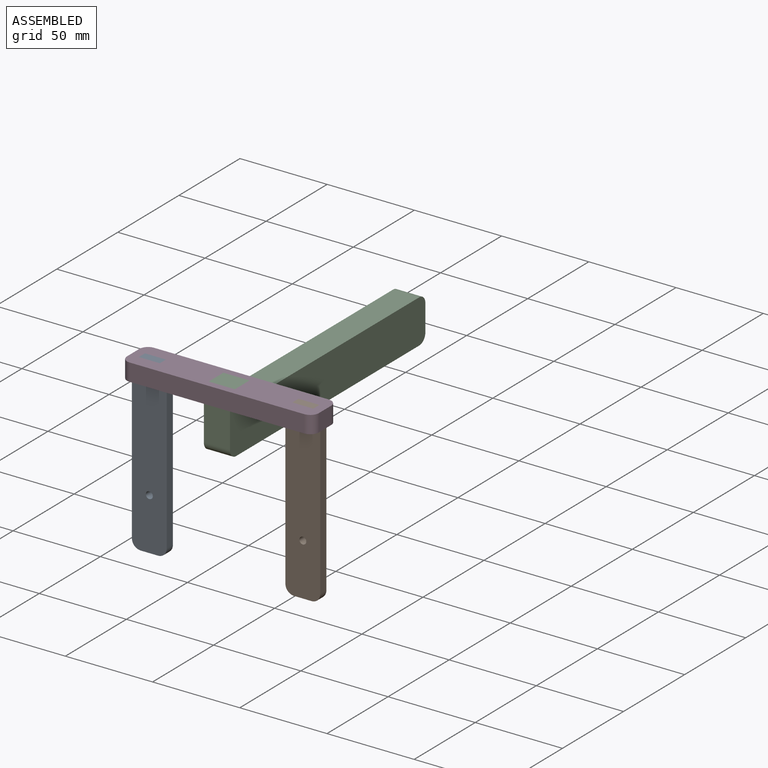
[diagram: assembled view]
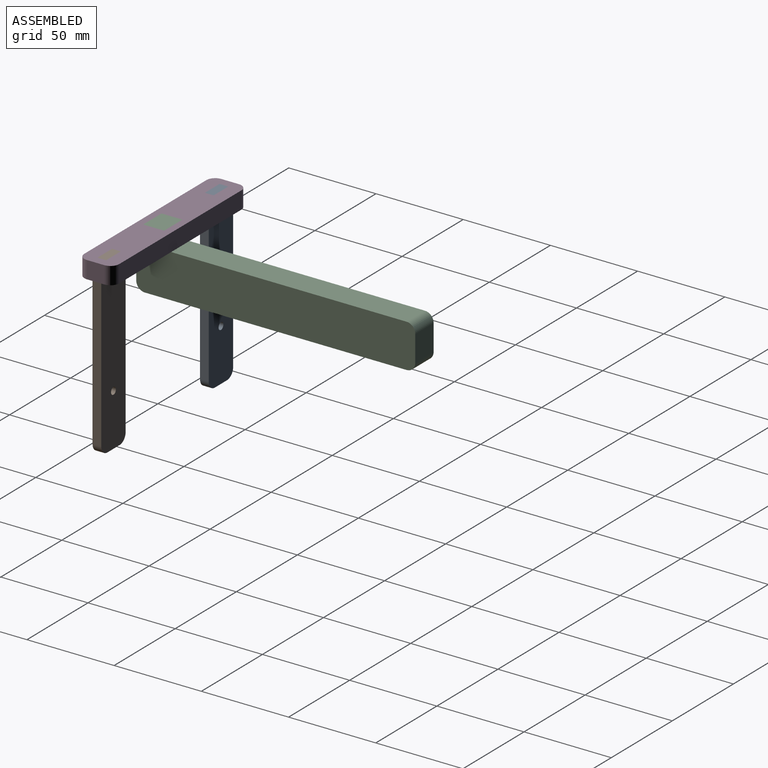
[diagram: assembled view, second angle]
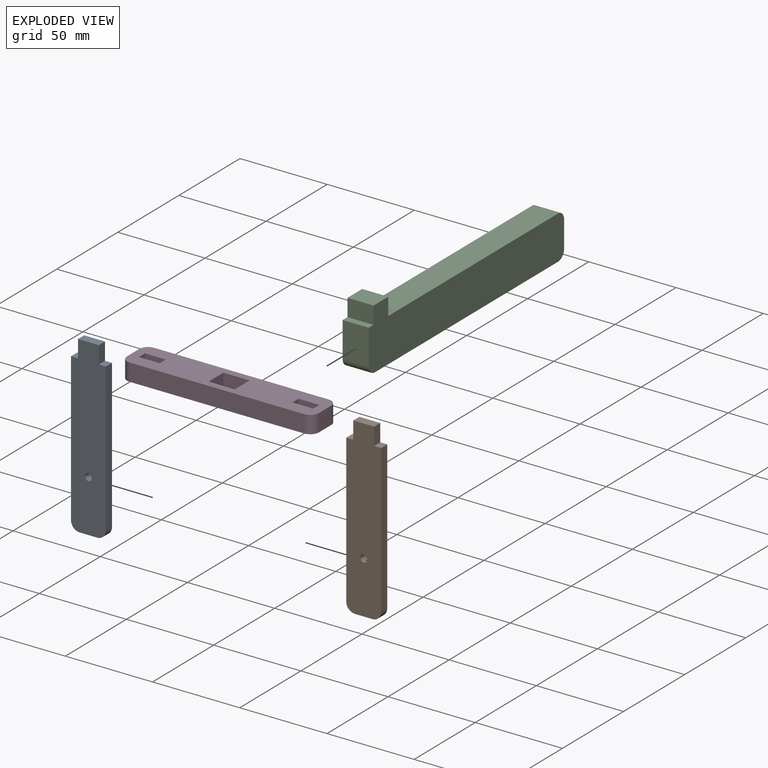
[diagram: exploded view]
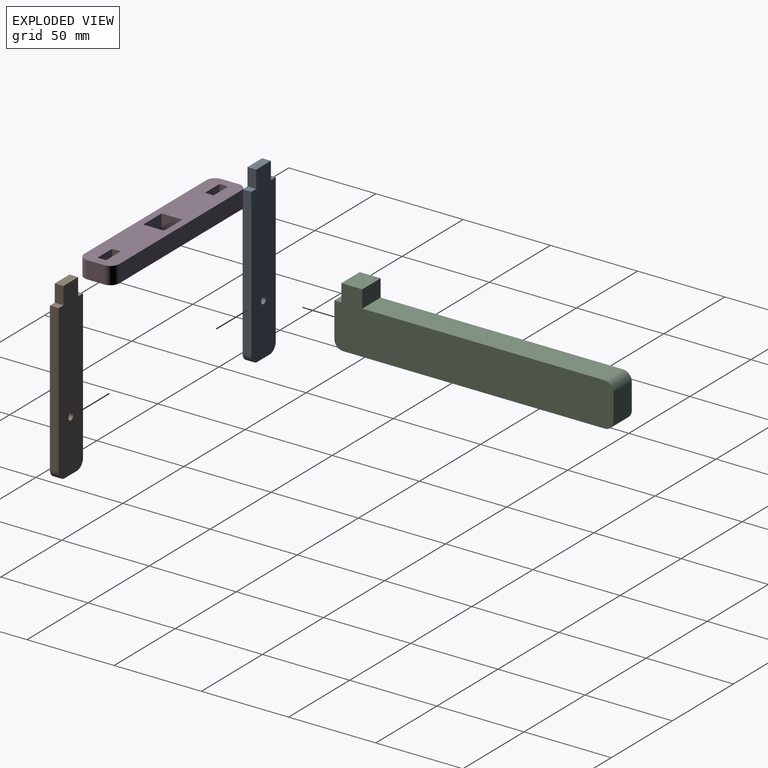
[diagram: exploded view, second angle]
ASSEMBLY  parts=4 mates=3
PART A: 13 faces, bbox 20x5x100 mm
  f0: plane 12x5mm, normal (0,0,1), area 60mm2, adj f1,f10,f11,f12
  f1: plane 10x5mm, normal (-1,0,0), area 50mm2, adj f0,f2,f11,f12
  f2: plane 5x4mm, normal (0,0,1), area 20mm2, adj f1,f3,f11,f12
  f3: plane 85x5mm, normal (-1,0,0), area 425mm2, adj f2,f4,f11,f12
  f4: cylinder r=5mm len=5mm, axis (0,1,0), area 39.3mm2, adj f3,f5,f11,f12
  f5: plane 10x5mm, normal (0,0,-1), area 50mm2, adj f4,f6,f11,f12
  f6: cylinder r=5mm len=5mm, axis (0,1,0), area 39.3mm2, adj f5,f7,f11,f12
  f7: plane 85x5mm, normal (1,0,0), area 425mm2, adj f6,f8,f11,f12
  f8: plane 5x4mm, normal (0,0,1), area 20mm2, adj f7,f10,f11,f12
  f9: cylinder r=2mm len=5mm, axis (0,1,0), area 62.8mm2, adj f11,f12
  f10: plane 10x5mm, normal (1,0,0), area 50mm2, adj f0,f8,f11,f12
  f11: plane 100x20mm, normal (0,-1,0), area 1896.7mm2, adj f0,f1,f2,f3,f4,f5,f6,f7
  f12: plane 100x20mm, normal (0,1,0), area 1896.7mm2, adj f0,f1,f2,f3,f4,f5,f6,f7
PART B: same geometry as A
PART C: 13 faces, bbox 15x160x35 mm
  f0: plane 139x15mm, normal (0,0,1), area 2085mm2, adj f1,f10,f11,f12
  f1: plane 15x10mm, normal (0,1,0), area 150mm2, adj f0,f2,f11,f12
  f2: plane 15x12mm, normal (0,0,1), area 180mm2, adj f1,f3,f11,f12
  f3: plane 15x10mm, normal (0,-1,0), area 150mm2, adj f2,f4,f11,f12
  f4: plane 15x4mm, normal (0,0,1), area 60mm2, adj f3,f5,f11,f12
  f5: plane 20x15mm, normal (0,-1,0), area 300mm2, adj f4,f6,f11,f12
  f6: cylinder r=5mm len=15mm, axis (-1,0,0), area 117.8mm2, adj f5,f7,f11,f12
  f7: plane 150x15mm, normal (0,0,-1), area 2250mm2, adj f6,f8,f11,f12
  f8: cylinder r=5mm len=15mm, axis (-1,0,0), area 117.8mm2, adj f7,f9,f11,f12
  f9: plane 15x15mm, normal (0,1,0), area 225mm2, adj f8,f10,f11,f12
  f10: cylinder r=5mm len=15mm, axis (-1,0,0), area 117.8mm2, adj f0,f9,f11,f12
  f11: plane 160x35mm, normal (1,0,0), area 4103.9mm2, adj f0,f1,f2,f3,f4,f5,f6,f7
  f12: plane 160x35mm, normal (-1,0,0), area 4103.9mm2, adj f0,f1,f2,f3,f4,f5,f6,f7
PART D: 22 faces, bbox 110x10x20 mm
  f0: plane 10x10mm, normal (1,0,0), area 100mm2, adj f1,f19,f20,f21
  f1: cylinder r=5mm len=10mm, axis (0,1,0), area 78.5mm2, adj f0,f2,f20,f21
  f2: plane 100x10mm, normal (0,0,1), area 1000mm2, adj f1,f3,f20,f21
  f3: cylinder r=5mm len=10mm, axis (0,1,0), area 78.5mm2, adj f2,f4,f20,f21
  f4: plane 10x10mm, normal (-1,0,0), area 100mm2, adj f3,f5,f20,f21
  f5: cylinder r=5mm len=10mm, axis (0,1,0), area 78.5mm2, adj f4,f6,f20,f21
  f6: plane 100x10mm, normal (0,0,-1), area 1000mm2, adj f5,f19,f20,f21
  f7: plane 12x10mm, normal (1,0,0), area 120mm2, adj f8,f16,f20,f21
  f8: plane 15x10mm, normal (0,0,-1), area 150mm2, adj f7,f9,f20,f21
  f9: plane 12x10mm, normal (-1,0,0), area 120mm2, adj f8,f16,f20,f21
  f10: plane 12x10mm, normal (0,0,-1), area 120mm2, adj f11,f17,f20,f21
  f11: plane 10x5mm, normal (-1,0,0), area 50mm2, adj f10,f12,f20,f21
  f12: plane 12x10mm, normal (0,0,1), area 120mm2, adj f11,f17,f20,f21
  f13: plane 12x10mm, normal (0,0,1), area 120mm2, adj f14,f18,f20,f21
  f14: plane 10x5mm, normal (1,0,0), area 50mm2, adj f13,f15,f20,f21
  f15: plane 12x10mm, normal (0,0,-1), area 120mm2, adj f14,f18,f20,f21
  f16: plane 15x10mm, normal (0,0,1), area 150mm2, adj f7,f9,f20,f21
  f17: plane 10x5mm, normal (1,0,0), area 50mm2, adj f10,f12,f20,f21
  f18: plane 10x5mm, normal (-1,0,0), area 50mm2, adj f13,f15,f20,f21
  f19: cylinder r=5mm len=10mm, axis (0,1,0), area 78.5mm2, adj f0,f6,f20,f21
  f20: plane 110x20mm, normal (0,-1,0), area 1878.5mm2, adj f0,f1,f2,f3,f4,f5,f6,f7
  f21: plane 110x20mm, normal (0,1,0), area 1878.5mm2, adj f0,f1,f2,f3,f4,f5,f6,f7
PLACE A rot(axis=(1,0,0),0deg) t=(-113.59,-34.34,-49.44)mm
PLACE B rot(axis=(1,0,0),0deg) t=(-25.59,-34.34,-49.44)mm
PLACE C rot(axis=(1,0,0),0deg) t=(-42.82,33.16,-25.46)mm
PLACE D rot(axis=(-1,0,0),90deg) t=(-35.32,-36.84,-12.96)mm
MATE fastened C.f3 <-> D.f16  axis (0,-1,0) through (-35.32,-42.84,-7.96)mm
MATE fastened A.f1 <-> D.f14  axis (-1,0,0) through (-85.32,-36.84,-7.96)mm
MATE fastened B.f10 <-> D.f11  axis (1,0,0) through (14.68,-36.84,-7.96)mm
